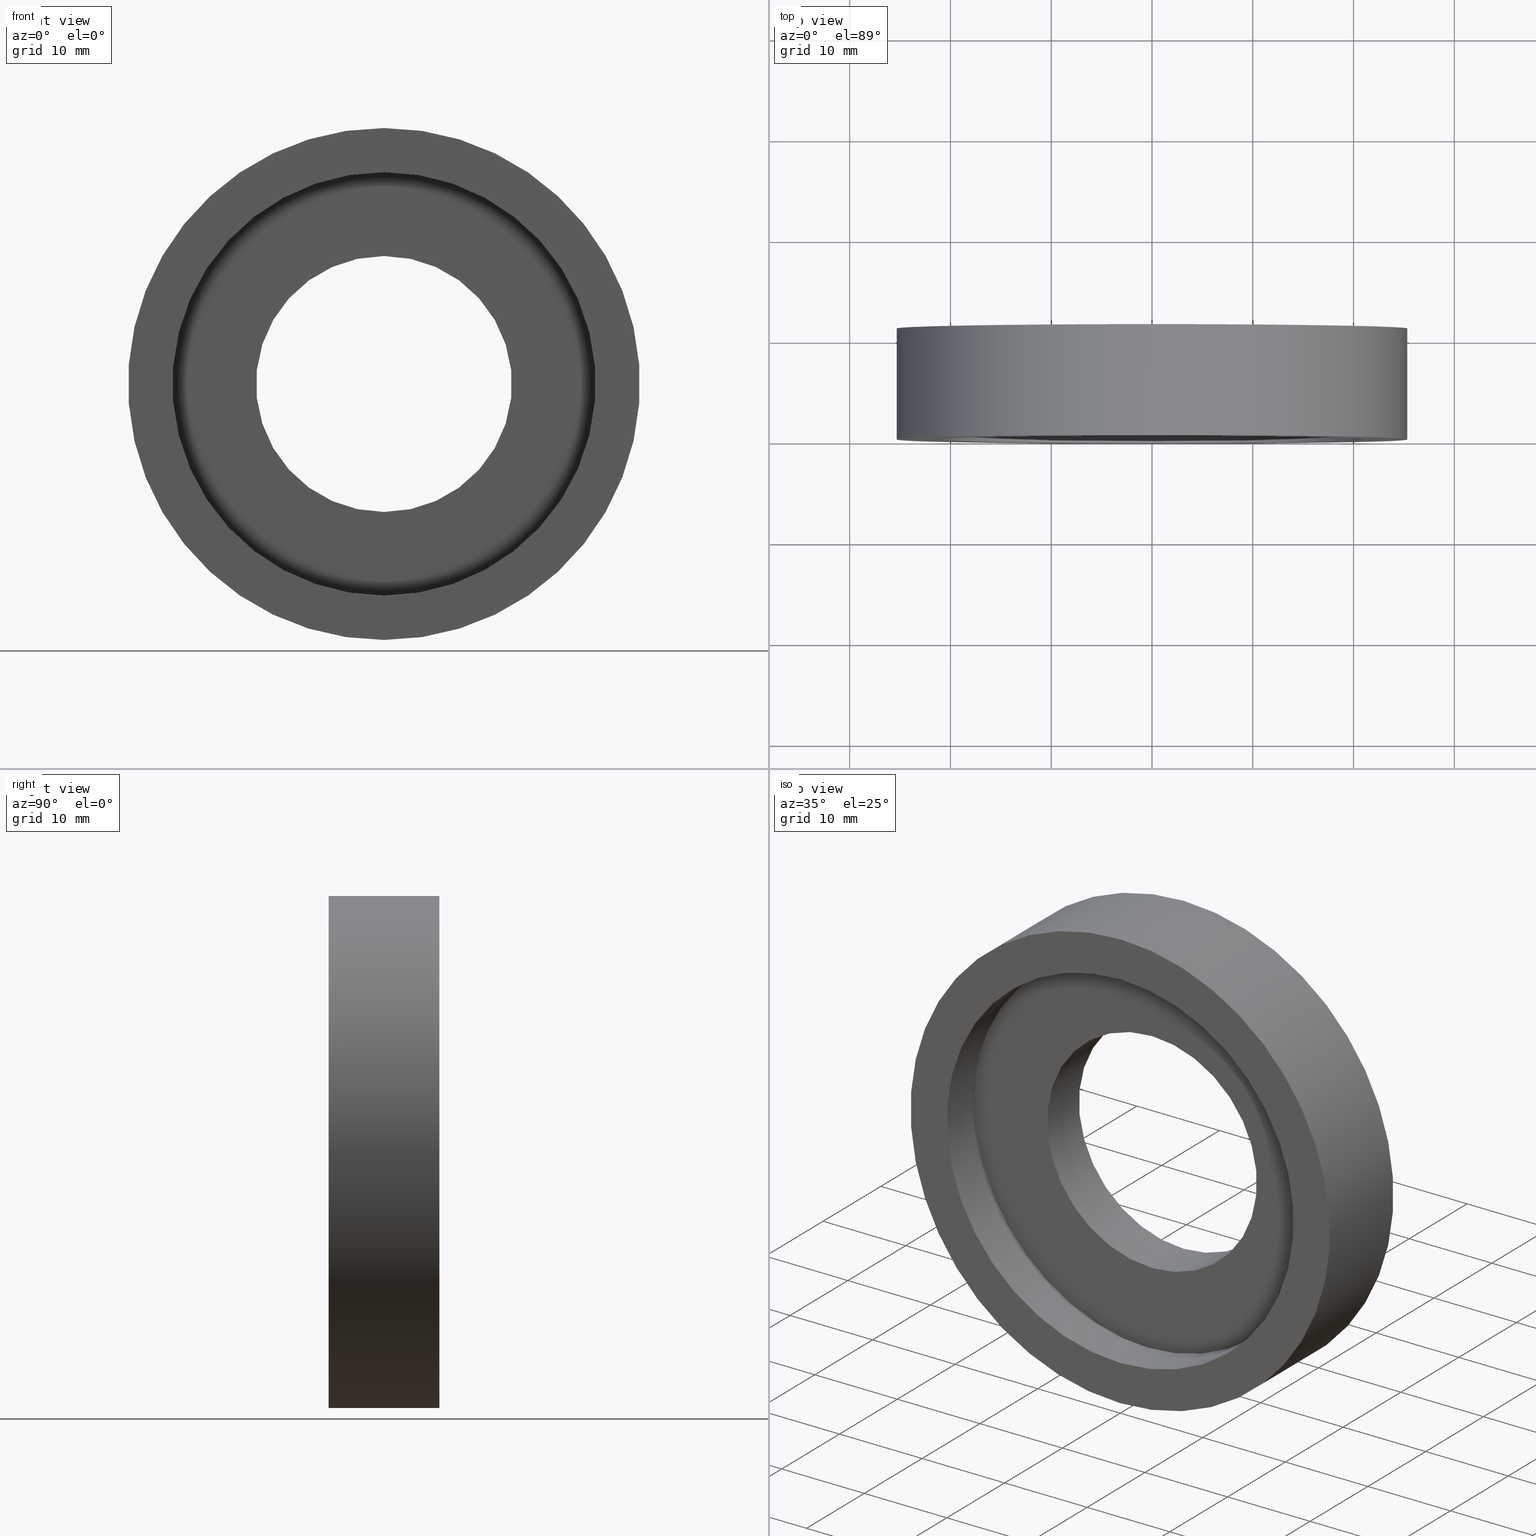
[diagram: canonical four-view strip — front | top / right | iso, engineering-drawing reading convention]
A machine part, canonical four-view strip (front | top / right | iso — engineering-drawing reading convention). The complete STEP part file that produces these views, byte-faithful:
ISO-10303-21;
HEADER;
FILE_DESCRIPTION (( 'STEP AP203' ),
    '1' );
FILE_NAME ('504043.STEP',
    '2021-06-01T06:07:45',
    ( '' ),
    ( '' ),
    'SwSTEP 2.0',
    'SolidWorks 2020',
    '' );
FILE_SCHEMA (( 'CONFIG_CONTROL_DESIGN' ));
ENDSEC;

DATA;
#1 = CARTESIAN_POINT ( 'NONE',  ( 0.000000000000000000, 5.500000000000000888, 0.000000000000000000 ) ) ;
#2 = UNCERTAINTY_MEASURE_WITH_UNIT (LENGTH_MEASURE( 1.000000000000000082E-05 ), #83, 'distance_accuracy_value', 'NONE');
#3 = EDGE_LOOP ( 'NONE', ( #340, #92, #407, #136 ) ) ;
#4 = DIRECTION ( 'NONE',  ( 0.000000000000000000, 0.000000000000000000, -1.000000000000000000 ) ) ;
#5 = CIRCLE ( 'NONE', #19, 21.00000000000000000 ) ;
#6 = LINE ( 'NONE', #234, #233 ) ;
#7 = CARTESIAN_POINT ( 'NONE',  ( 3.110602869834276865E-15, 0.000000000000000000, 25.39999999999999858 ) ) ;
#8 = EDGE_CURVE ( 'NONE', #88, #152, #375, .T. ) ;
#9 = DIRECTION ( 'NONE',  ( -0.000000000000000000, -1.000000000000000000, -0.000000000000000000 ) ) ;
#10 = VECTOR ( 'NONE', #135, 1000.000000000000000 ) ;
#11 = DIRECTION ( 'NONE',  ( -0.000000000000000000, -1.000000000000000000, -0.000000000000000000 ) ) ;
#12 = CARTESIAN_POINT ( 'NONE',  ( 1.555301434917138433E-15, 10.99999999999999822, 12.69999999999999929 ) ) ;
#13 = APPROVAL ( #158, 'δָ��' ) ;
#14 = ORIENTED_EDGE ( 'NONE', *, *, #390, .F. ) ;
#15 = APPLICATION_PROTOCOL_DEFINITION ( 'international standard', 'config_control_design', 1994, #153 ) ;
#16 = EDGE_LOOP ( 'NONE', ( #196, #164, #145, #95 ) ) ;
#17 = CIRCLE ( 'NONE', #253, 25.39999999999999503 ) ;
#18 = CARTESIAN_POINT ( 'NONE',  ( 0.000000000000000000, 10.99999999999999822, -12.69999999999999929 ) ) ;
#19 = AXIS2_PLACEMENT_3D ( 'NONE', #139, #292, #4 ) ;
#20 = APPROVAL_PERSON_ORGANIZATION ( #288, #321, #96 ) ;
#21 = VERTEX_POINT ( 'NONE', #381 ) ;
#22 = ORIENTED_EDGE ( 'NONE', *, *, #275, .T. ) ;
#23 = EDGE_CURVE ( 'NONE', #405, #21, #207, .T. ) ;
#24 = FACE_OUTER_BOUND ( 'NONE', #241, .T. ) ;
#25 = ORIENTED_EDGE ( 'NONE', *, *, #260, .T. ) ;
#26 = CALENDAR_DATE ( 2021, 1, 6 ) ;
#27 = ORIENTED_EDGE ( 'NONE', *, *, #30, .T. ) ;
#28 = COORDINATED_UNIVERSAL_TIME_OFFSET ( 8, 0, .AHEAD. ) ;
#29 = EDGE_LOOP ( 'NONE', ( #183, #163 ) ) ;
#30 = EDGE_CURVE ( 'NONE', #66, #152, #42, .T. ) ;
#31 = DATE_TIME_ROLE ( 'classification_date' ) ;
#32 = CARTESIAN_POINT ( 'NONE',  ( 0.000000000000000000, 10.99999999999999645, 0.000000000000000000 ) ) ;
#33 = COORDINATED_UNIVERSAL_TIME_OFFSET ( 8, 0, .AHEAD. ) ;
#34 = DIRECTION ( 'NONE',  ( 0.000000000000000000, 0.000000000000000000, -1.000000000000000000 ) ) ;
#35 = VECTOR ( 'NONE', #227, 1000.000000000000000 ) ;
#36 = CIRCLE ( 'NONE', #355, 21.00000000000000000 ) ;
#37 = APPLICATION_PROTOCOL_DEFINITION ( 'international standard', 'config_control_design', 1994, #46 ) ;
#38 = EDGE_LOOP ( 'NONE', ( #365, #243 ) ) ;
#39 = ADVANCED_FACE ( 'NONE', ( #344, #98 ), #60, .T. ) ;
#40 = DIRECTION ( 'NONE',  ( -0.000000000000000000, -1.000000000000000000, -0.000000000000000000 ) ) ;
#41 = CARTESIAN_POINT ( 'NONE',  ( 0.000000000000000000, 5.499999999999997335, 0.000000000000000000 ) ) ;
#42 = CIRCLE ( 'NONE', #147, 25.39999999999999503 ) ;
#43 = CARTESIAN_POINT ( 'NONE',  ( 0.000000000000000000, 0.000000000000000000, 0.000000000000000000 ) ) ;
#44 = CARTESIAN_POINT ( 'NONE',  ( 0.000000000000000000, -5.551145924324170024E-17, 0.000000000000000000 ) ) ;
#45 = DIRECTION ( 'NONE',  ( -0.000000000000000000, -1.000000000000000000, -0.000000000000000000 ) ) ;
#46 = APPLICATION_CONTEXT ( 'configuration controlled 3d designs of mechanical parts and assemblies' ) ;
#47 = ORGANIZATION ( 'δָ��', 'δָ��', '' ) ;
#48 = EDGE_CURVE ( 'NONE', #150, #86, #350, .T. ) ;
#49 = DIRECTION ( 'NONE',  ( -0.000000000000000000, -1.000000000000000000, -0.000000000000000000 ) ) ;
#50 = EDGE_LOOP ( 'NONE', ( #291, #208, #93, #305 ) ) ;
#51 = ORIENTED_EDGE ( 'NONE', *, *, #48, .F. ) ;
#52 = DIRECTION ( 'NONE',  ( 0.000000000000000000, 0.000000000000000000, -1.000000000000000000 ) ) ;
#53 = ORIENTED_EDGE ( 'NONE', *, *, #281, .T. ) ;
#54 = AXIS2_PLACEMENT_3D ( 'NONE', #217, #252, #127 ) ;
#55 = AXIS2_PLACEMENT_3D ( 'NONE', #395, #398, #244 ) ;
#56 = CARTESIAN_POINT ( 'NONE',  ( 0.000000000000000000, 4.500000000000000888, -21.60000000000000142 ) ) ;
#57 = ADVANCED_FACE ( 'NONE', ( #191, #380 ), #157, .T. ) ;
#58 = CARTESIAN_POINT ( 'NONE',  ( 0.000000000000000000, 10.99999999999999645, 0.000000000000000000 ) ) ;
#59 = ORIENTED_EDGE ( 'NONE', *, *, #103, .F. ) ;
#60 = PLANE ( 'NONE',  #220 ) ;
#61 = PERSON_AND_ORGANIZATION ( #71, #47 ) ;
#62 = EDGE_CURVE ( 'NONE', #334, #88, #173, .T. ) ;
#63 = AXIS2_PLACEMENT_3D ( 'NONE', #385, #322, #262 ) ;
#64 = CARTESIAN_POINT ( 'NONE',  ( 0.000000000000000000, 4.500000000000000888, -21.00000000000000000 ) ) ;
#65 = CARTESIAN_POINT ( 'NONE',  ( 0.000000000000000000, 4.500000000000000888, 0.000000000000000000 ) ) ;
#66 = VERTEX_POINT ( 'NONE', #161 ) ;
#67 = APPROVAL_ROLE ( '' ) ;
#68 = ORIENTED_EDGE ( 'NONE', *, *, #82, .T. ) ;
#69 =( GEOMETRIC_REPRESENTATION_CONTEXT ( 3 ) GLOBAL_UNCERTAINTY_ASSIGNED_CONTEXT ( ( #2 ) ) GLOBAL_UNIT_ASSIGNED_CONTEXT ( ( #83, #151, #393 ) ) REPRESENTATION_CONTEXT ( 'NONE', 'WORKASPACE' ) );
#70 = EDGE_CURVE ( 'NONE', #21, #405, #195, .T. ) ;
#71 = PERSON ( 'δָ��', 'δָ��', 'δָ��', ('δָ��'), ('δָ��'), ('δָ��') ) ;
#72 = CARTESIAN_POINT ( 'NONE',  ( 0.000000000000000000, 5.976924914303601485E-15, 0.000000000000000000 ) ) ;
#73 = CARTESIAN_POINT ( 'NONE',  ( 0.000000000000000000, -5.551145924324170024E-17, -25.39999999999999503 ) ) ;
#74 = CC_DESIGN_PERSON_AND_ORGANIZATION_ASSIGNMENT ( #341, #308, ( #204 ) ) ;
#75 = FACE_BOUND ( 'NONE', #38, .T. ) ;
#76 = CIRCLE ( 'NONE', #286, 21.00000000000000000 ) ;
#77 = AXIS2_PLACEMENT_3D ( 'NONE', #339, #242, #368 ) ;
#78 = CC_DESIGN_APPROVAL ( #237, ( #255 ) ) ;
#79 = CARTESIAN_POINT ( 'NONE',  ( 0.000000000000000000, 0.000000000000000000, 0.000000000000000000 ) ) ;
#80 = CYLINDRICAL_SURFACE ( 'NONE', #330, 21.00000000000000000 ) ;
#81 = DIRECTION ( 'NONE',  ( 0.000000000000000000, 0.000000000000000000, -1.000000000000000000 ) ) ;
#82 = EDGE_CURVE ( 'NONE', #405, #397, #409, .T. ) ;
#83 =( LENGTH_UNIT ( ) NAMED_UNIT ( * ) SI_UNIT ( .MILLI., .METRE. ) );
#84 = ORIENTED_EDGE ( 'NONE', *, *, #317, .F. ) ;
#85 = CYLINDRICAL_SURFACE ( 'NONE', #246, 12.69999999999999929 ) ;
#86 = VERTEX_POINT ( 'NONE', #64 ) ;
#87 = CARTESIAN_POINT ( 'NONE',  ( 0.000000000000000000, 5.499999999999997335, 0.000000000000000000 ) ) ;
#88 = VERTEX_POINT ( 'NONE', #102 ) ;
#89 = VECTOR ( 'NONE', #49, 1000.000000000000000 ) ;
#90 = FACE_OUTER_BOUND ( 'NONE', #179, .T. ) ;
#91 = CC_DESIGN_APPROVAL ( #321, ( #239 ) ) ;
#92 = ORIENTED_EDGE ( 'NONE', *, *, #119, .T. ) ;
#93 = ORIENTED_EDGE ( 'NONE', *, *, #403, .T. ) ;
#94 = PRODUCT_RELATED_PRODUCT_CATEGORY ( 'detail', '', ( #235 ) ) ;
#95 = ORIENTED_EDGE ( 'NONE', *, *, #30, .F. ) ;
#96 = APPROVAL_ROLE ( '' ) ;
#97 = AXIS2_PLACEMENT_3D ( 'NONE', #261, #40, #166 ) ;
#98 = FACE_OUTER_BOUND ( 'NONE', #129, .T. ) ;
#99 = LOCAL_TIME ( 14, 7, 45.00000000000000000, #343 ) ;
#100 = ORIENTED_EDGE ( 'NONE', *, *, #216, .F. ) ;
#101 = CALENDAR_DATE ( 2021, 1, 6 ) ;
#102 = CARTESIAN_POINT ( 'NONE',  ( 0.000000000000000000, 10.99999999999999645, -25.39999999999999858 ) ) ;
#103 = EDGE_CURVE ( 'NONE', #21, #400, #313, .T. ) ;
#104 = DIRECTION ( 'NONE',  ( -0.000000000000000000, -1.000000000000000000, -0.000000000000000000 ) ) ;
#105 = LOCAL_TIME ( 14, 7, 45.00000000000000000, #28 ) ;
#106 = DIRECTION ( 'NONE',  ( -0.000000000000000000, -1.000000000000000000, -0.000000000000000000 ) ) ;
#107 = CC_DESIGN_PERSON_AND_ORGANIZATION_ASSIGNMENT ( #318, #226, ( #235 ) ) ;
#108 = CYLINDRICAL_SURFACE ( 'NONE', #361, 12.69999999999999929 ) ;
#109 = MANIFOLD_SOLID_BREP ( '��ת1', #383 ) ;
#110 = CYLINDRICAL_SURFACE ( 'NONE', #212, 21.60000000000000142 ) ;
#111 = VECTOR ( 'NONE', #104, 1000.000000000000000 ) ;
#112 = CARTESIAN_POINT ( 'NONE',  ( 1.555301434917138433E-15, 0.000000000000000000, 12.69999999999999929 ) ) ;
#113 = DIRECTION ( 'NONE',  ( -0.000000000000000000, -1.000000000000000000, -0.000000000000000000 ) ) ;
#114 = CC_DESIGN_DATE_AND_TIME_ASSIGNMENT ( #282, #218, ( #204 ) ) ;
#115 = CARTESIAN_POINT ( 'NONE',  ( 0.000000000000000000, 4.500000000000000888, 0.000000000000000000 ) ) ;
#116 = EDGE_LOOP ( 'NONE', ( #22, #215 ) ) ;
#117 = CARTESIAN_POINT ( 'NONE',  ( 0.000000000000000000, 0.000000000000000000, 0.000000000000000000 ) ) ;
#118 = ORIENTED_EDGE ( 'NONE', *, *, #403, .F. ) ;
#119 = EDGE_CURVE ( 'NONE', #334, #66, #170, .T. ) ;
#120 = CARTESIAN_POINT ( 'NONE',  ( 0.000000000000000000, 0.000000000000000000, 0.000000000000000000 ) ) ;
#121 = ORIENTED_EDGE ( 'NONE', *, *, #62, .F. ) ;
#122 = FACE_BOUND ( 'NONE', #177, .T. ) ;
#123 = ORIENTED_EDGE ( 'NONE', *, *, #216, .T. ) ;
#124 = DIRECTION ( 'NONE',  ( 1.000000000000000000, 0.000000000000000000, 0.000000000000000000 ) ) ;
#125 = EDGE_CURVE ( 'NONE', #152, #66, #17, .T. ) ;
#126 = DIRECTION ( 'NONE',  ( 0.000000000000000000, 0.000000000000000000, 1.000000000000000000 ) ) ;
#127 = DIRECTION ( 'NONE',  ( 0.000000000000000000, 0.000000000000000000, -1.000000000000000000 ) ) ;
#128 = SECURITY_CLASSIFICATION_LEVEL ( 'unclassified' ) ;
#129 = EDGE_LOOP ( 'NONE', ( #280, #300 ) ) ;
#130 = AXIS2_PLACEMENT_3D ( 'NONE', #256, #189, #314 ) ;
#131 = CARTESIAN_POINT ( 'NONE',  ( 0.000000000000000000, 0.000000000000000000, 0.000000000000000000 ) ) ;
#132 = EDGE_LOOP ( 'NONE', ( #362, #123, #53, #210 ) ) ;
#133 = PERSON_AND_ORGANIZATION ( #71, #47 ) ;
#134 = CC_DESIGN_PERSON_AND_ORGANIZATION_ASSIGNMENT ( #257, #185, ( #239 ) ) ;
#135 = DIRECTION ( 'NONE',  ( -0.000000000000000000, -1.000000000000000000, -0.000000000000000000 ) ) ;
#136 = ORIENTED_EDGE ( 'NONE', *, *, #8, .F. ) ;
#137 = CARTESIAN_POINT ( 'NONE',  ( 0.000000000000000000, 1.200936128785044448E-14, -21.00000000000000000 ) ) ;
#138 = AXIS2_PLACEMENT_3D ( 'NONE', #131, #126, #124 ) ;
#139 = CARTESIAN_POINT ( 'NONE',  ( 0.000000000000000000, 1.200936128785044448E-14, 0.000000000000000000 ) ) ;
#140 = DIRECTION ( 'NONE',  ( -0.000000000000000000, -1.000000000000000000, -0.000000000000000000 ) ) ;
#141 = CYLINDRICAL_SURFACE ( 'NONE', #384, 25.39999999999999858 ) ;
#142 = EDGE_CURVE ( 'NONE', #274, #259, #76, .T. ) ;
#143 = FACE_OUTER_BOUND ( 'NONE', #372, .T. ) ;
#144 = ORIENTED_EDGE ( 'NONE', *, *, #23, .F. ) ;
#145 = ORIENTED_EDGE ( 'NONE', *, *, #8, .T. ) ;
#146 = ADVANCED_FACE ( 'NONE', ( #325 ), #110, .F. ) ;
#147 = AXIS2_PLACEMENT_3D ( 'NONE', #342, #374, #346 ) ;
#148 = CIRCLE ( 'NONE', #298, 12.69999999999999929 ) ;
#149 = DIRECTION ( 'NONE',  ( 0.000000000000000000, 0.000000000000000000, -1.000000000000000000 ) ) ;
#150 = VERTEX_POINT ( 'NONE', #297 ) ;
#151 =( NAMED_UNIT ( * ) PLANE_ANGLE_UNIT ( ) SI_UNIT ( $, .RADIAN. ) );
#152 = VERTEX_POINT ( 'NONE', #73 ) ;
#153 = APPLICATION_CONTEXT ( 'configuration controlled 3d designs of mechanical parts and assemblies' ) ;
#154 = DIRECTION ( 'NONE',  ( 0.000000000000000000, 0.000000000000000000, -1.000000000000000000 ) ) ;
#155 = VERTEX_POINT ( 'NONE', #352 ) ;
#156 = CALENDAR_DATE ( 2021, 1, 6 ) ;
#157 = PLANE ( 'NONE',  #130 ) ;
#158 = APPROVAL_STATUS ( 'not_yet_approved' ) ;
#159 = EDGE_LOOP ( 'NONE', ( #84, #121 ) ) ;
#160 = COORDINATED_UNIVERSAL_TIME_OFFSET ( 8, 0, .AHEAD. ) ;
#161 = CARTESIAN_POINT ( 'NONE',  ( 3.110602869834276471E-15, -5.551145924324170024E-17, 25.39999999999999503 ) ) ;
#162 = CIRCLE ( 'NONE', #389, 21.60000000000000142 ) ;
#163 = ORIENTED_EDGE ( 'NONE', *, *, #48, .T. ) ;
#164 = ORIENTED_EDGE ( 'NONE', *, *, #62, .T. ) ;
#165 = EDGE_CURVE ( 'NONE', #150, #259, #353, .T. ) ;
#166 = DIRECTION ( 'NONE',  ( 0.000000000000000000, 0.000000000000000000, -1.000000000000000000 ) ) ;
#167 = DIRECTION ( 'NONE',  ( 0.000000000000000000, -0.000000000000000000, 1.000000000000000000 ) ) ;
#168 = PRODUCT_DEFINITION_SHAPE ( 'NONE', 'NONE',  #204 ) ;
#169 = DIRECTION ( 'NONE',  ( 0.000000000000000000, 1.000000000000000000, 0.000000000000000000 ) ) ;
#170 = LINE ( 'NONE', #7, #200 ) ;
#171 = ADVANCED_FACE ( 'NONE', ( #198 ), #80, .F. ) ;
#172 = DIRECTION ( 'NONE',  ( 0.000000000000000000, 0.000000000000000000, -1.000000000000000000 ) ) ;
#173 = CIRCLE ( 'NONE', #272, 25.39999999999999858 ) ;
#174 = LOCAL_TIME ( 14, 7, 45.00000000000000000, #33 ) ;
#175 = CC_DESIGN_SECURITY_CLASSIFICATION ( #255, ( #239 ) ) ;
#176 = EDGE_LOOP ( 'NONE', ( #248, #181, #394, #258 ) ) ;
#177 = EDGE_LOOP ( 'NONE', ( #14, #270 ) ) ;
#178 = CARTESIAN_POINT ( 'NONE',  ( 2.645237086158282987E-15, 5.500000000000000888, 21.60000000000000142 ) ) ;
#179 = EDGE_LOOP ( 'NONE', ( #51, #370, #25, #118 ) ) ;
#180 = CIRCLE ( 'NONE', #337, 21.60000000000000142 ) ;
#181 = ORIENTED_EDGE ( 'NONE', *, *, #70, .F. ) ;
#182 = FACE_OUTER_BOUND ( 'NONE', #132, .T. ) ;
#183 = ORIENTED_EDGE ( 'NONE', *, *, #333, .T. ) ;
#184 = ADVANCED_FACE ( 'NONE', ( #143 ), #108, .F. ) ;
#185 = PERSON_AND_ORGANIZATION_ROLE ( 'creator' ) ;
#186 = DIRECTION ( 'NONE',  ( -0.000000000000000000, -1.000000000000000000, -0.000000000000000000 ) ) ;
#187 = CIRCLE ( 'NONE', #287, 12.69999999999999929 ) ;
#188 = CALENDAR_DATE ( 2021, 1, 6 ) ;
#189 = DIRECTION ( 'NONE',  ( 0.000000000000000000, 1.000000000000000000, 0.000000000000000000 ) ) ;
#190 = APPROVAL_DATE_TIME ( #401, #321 ) ;
#191 = FACE_BOUND ( 'NONE', #116, .T. ) ;
#192 = EDGE_CURVE ( 'NONE', #367, #283, #187, .T. ) ;
#193 = APPROVAL_DATE_TIME ( #345, #237 ) ;
#194 = ORIENTED_EDGE ( 'NONE', *, *, #23, .T. ) ;
#195 = CIRCLE ( 'NONE', #376, 21.60000000000000142 ) ;
#196 = ORIENTED_EDGE ( 'NONE', *, *, #119, .F. ) ;
#197 = ADVANCED_FACE ( 'NONE', ( #326 ), #141, .T. ) ;
#198 = FACE_OUTER_BOUND ( 'NONE', #50, .T. ) ;
#199 = CARTESIAN_POINT ( 'NONE',  ( 2.571758278209441661E-15, 1.200936128785044448E-14, 21.00000000000000000 ) ) ;
#200 = VECTOR ( 'NONE', #140, 1000.000000000000000 ) ;
#201 = DIRECTION ( 'NONE',  ( -0.000000000000000000, -1.000000000000000000, -0.000000000000000000 ) ) ;
#202 = AXIS2_PLACEMENT_3D ( 'NONE', #58, #113, #240 ) ;
#203 = DIRECTION ( 'NONE',  ( 0.000000000000000000, 0.000000000000000000, -1.000000000000000000 ) ) ;
#204 = PRODUCT_DEFINITION ( 'δ֪', '', #239, #268 ) ;
#205 = CARTESIAN_POINT ( 'NONE',  ( 0.000000000000000000, 0.000000000000000000, 0.000000000000000000 ) ) ;
#206 = CARTESIAN_POINT ( 'NONE',  ( 0.000000000000000000, 4.500000000000000888, 0.000000000000000000 ) ) ;
#207 = CIRCLE ( 'NONE', #54, 21.60000000000000142 ) ;
#208 = ORIENTED_EDGE ( 'NONE', *, *, #333, .F. ) ;
#209 = DIRECTION ( 'NONE',  ( 0.000000000000000000, 0.000000000000000000, -1.000000000000000000 ) ) ;
#210 = ORIENTED_EDGE ( 'NONE', *, *, #229, .F. ) ;
#211 = DIRECTION ( 'NONE',  ( -0.000000000000000000, -1.000000000000000000, -0.000000000000000000 ) ) ;
#212 = AXIS2_PLACEMENT_3D ( 'NONE', #205, #45, #327 ) ;
#213 = CIRCLE ( 'NONE', #265, 12.69999999999999929 ) ;
#214 = DIRECTION ( 'NONE',  ( -0.000000000000000000, -1.000000000000000000, -0.000000000000000000 ) ) ;
#215 = ORIENTED_EDGE ( 'NONE', *, *, #192, .T. ) ;
#216 = EDGE_CURVE ( 'NONE', #367, #155, #391, .T. ) ;
#217 = CARTESIAN_POINT ( 'NONE',  ( 0.000000000000000000, 5.500000000000000888, 0.000000000000000000 ) ) ;
#218 = DATE_TIME_ROLE ( 'creation_date' ) ;
#219 = DIRECTION ( 'NONE',  ( 0.000000000000000000, 0.000000000000000000, -1.000000000000000000 ) ) ;
#220 = AXIS2_PLACEMENT_3D ( 'NONE', #223, #289, #315 ) ;
#221 = PERSON_AND_ORGANIZATION ( #71, #47 ) ;
#222 = ADVANCED_FACE ( 'NONE', ( #75, #354 ), #357, .F. ) ;
#223 = CARTESIAN_POINT ( 'NONE',  ( 0.000000000000000000, 4.500000000000000888, 0.000000000000000000 ) ) ;
#224 = CALENDAR_DATE ( 2021, 1, 6 ) ;
#225 = DIRECTION ( 'NONE',  ( -0.000000000000000000, -1.000000000000000000, -0.000000000000000000 ) ) ;
#226 = PERSON_AND_ORGANIZATION_ROLE ( 'design_owner' ) ;
#227 = DIRECTION ( 'NONE',  ( -0.000000000000000000, -1.000000000000000000, -0.000000000000000000 ) ) ;
#228 = DIRECTION ( 'NONE',  ( -0.000000000000000000, -1.000000000000000000, -0.000000000000000000 ) ) ;
#229 = EDGE_CURVE ( 'NONE', #283, #302, #6, .T. ) ;
#230 = CARTESIAN_POINT ( 'NONE',  ( 0.000000000000000000, 1.200936128785044448E-14, 0.000000000000000000 ) ) ;
#231 = DIRECTION ( 'NONE',  ( -0.000000000000000000, -1.000000000000000000, -0.000000000000000000 ) ) ;
#232 = CARTESIAN_POINT ( 'NONE',  ( 2.571758278209441661E-15, 0.000000000000000000, 21.00000000000000000 ) ) ;
#233 = VECTOR ( 'NONE', #228, 1000.000000000000000 ) ;
#234 = CARTESIAN_POINT ( 'NONE',  ( 0.000000000000000000, 0.000000000000000000, -12.69999999999999929 ) ) ;
#235 = PRODUCT ( '504043', '504043', '', ( #254 ) ) ;
#236 = DIRECTION ( 'NONE',  ( -0.000000000000000000, -1.000000000000000000, -0.000000000000000000 ) ) ;
#237 = APPROVAL ( #378, 'δָ��' ) ;
#238 = DIRECTION ( 'NONE',  ( 0.000000000000000000, 0.000000000000000000, -1.000000000000000000 ) ) ;
#239 = PRODUCT_DEFINITION_FORMATION_WITH_SPECIFIED_SOURCE ( '�κ�', '', #235, .NOT_KNOWN. ) ;
#240 = DIRECTION ( 'NONE',  ( 0.000000000000000000, 0.000000000000000000, -1.000000000000000000 ) ) ;
#241 = EDGE_LOOP ( 'NONE', ( #144, #68, #349, #59 ) ) ;
#242 = DIRECTION ( 'NONE',  ( -0.000000000000000000, -1.000000000000000000, -0.000000000000000000 ) ) ;
#243 = ORIENTED_EDGE ( 'NONE', *, *, #260, .F. ) ;
#244 = DIRECTION ( 'NONE',  ( 0.000000000000000000, 0.000000000000000000, -1.000000000000000000 ) ) ;
#245 = ADVANCED_FACE ( 'NONE', ( #295 ), #320, .T. ) ;
#246 = AXIS2_PLACEMENT_3D ( 'NONE', #120, #306, #154 ) ;
#247 = APPROVAL_STATUS ( 'not_yet_approved' ) ;
#248 = ORIENTED_EDGE ( 'NONE', *, *, #82, .F. ) ;
#249 = APPROVAL_ROLE ( '' ) ;
#250 = DIRECTION ( 'NONE',  ( 0.000000000000000000, 0.000000000000000000, -1.000000000000000000 ) ) ;
#251 = DATE_AND_TIME ( #224, #174 ) ;
#252 = DIRECTION ( 'NONE',  ( -0.000000000000000000, -1.000000000000000000, -0.000000000000000000 ) ) ;
#253 = AXIS2_PLACEMENT_3D ( 'NONE', #44, #106, #386 ) ;
#254 = MECHANICAL_CONTEXT ( 'NONE', #153, 'mechanical' ) ;
#255 = SECURITY_CLASSIFICATION ( '', '', #128 ) ;
#256 = CARTESIAN_POINT ( 'NONE',  ( -1.502516396515344672E-15, 10.99999999999999645, 0.000000000000000000 ) ) ;
#257 = PERSON_AND_ORGANIZATION ( #71, #47 ) ;
#258 = ORIENTED_EDGE ( 'NONE', *, *, #363, .T. ) ;
#259 = VERTEX_POINT ( 'NONE', #199 ) ;
#260 = EDGE_CURVE ( 'NONE', #259, #274, #5, .T. ) ;
#261 = CARTESIAN_POINT ( 'NONE',  ( 0.000000000000000000, 0.000000000000000000, 0.000000000000000000 ) ) ;
#262 = DIRECTION ( 'NONE',  ( 0.000000000000000000, 0.000000000000000000, -1.000000000000000000 ) ) ;
#263 = DIRECTION ( 'NONE',  ( 0.000000000000000000, 0.000000000000000000, -1.000000000000000000 ) ) ;
#264 = DIRECTION ( 'NONE',  ( -0.000000000000000000, -1.000000000000000000, -0.000000000000000000 ) ) ;
#265 = AXIS2_PLACEMENT_3D ( 'NONE', #87, #211, #209 ) ;
#266 = APPROVAL_PERSON_ORGANIZATION ( #221, #237, #67 ) ;
#267 = DIRECTION ( 'NONE',  ( 0.000000000000000000, 0.000000000000000000, -1.000000000000000000 ) ) ;
#268 = DESIGN_CONTEXT ( 'detailed design', #46, 'design' ) ;
#269 = CYLINDRICAL_SURFACE ( 'NONE', #377, 21.60000000000000142 ) ;
#270 = ORIENTED_EDGE ( 'NONE', *, *, #281, .F. ) ;
#271 = CARTESIAN_POINT ( 'NONE',  ( 0.000000000000000000, 5.499999999999997335, -12.69999999999999929 ) ) ;
#272 = AXIS2_PLACEMENT_3D ( 'NONE', #32, #225, #250 ) ;
#273 = DIRECTION ( 'NONE',  ( -0.000000000000000000, -1.000000000000000000, -0.000000000000000000 ) ) ;
#274 = VERTEX_POINT ( 'NONE', #137 ) ;
#275 = EDGE_CURVE ( 'NONE', #283, #367, #323, .T. ) ;
#276 = FACE_OUTER_BOUND ( 'NONE', #304, .T. ) ;
#277 = ORIENTED_EDGE ( 'NONE', *, *, #390, .T. ) ;
#278 = DATE_AND_TIME ( #26, #105 ) ;
#279 = APPROVAL_DATE_TIME ( #251, #13 ) ;
#280 = ORIENTED_EDGE ( 'NONE', *, *, #363, .F. ) ;
#281 = EDGE_CURVE ( 'NONE', #155, #302, #148, .T. ) ;
#282 = DATE_AND_TIME ( #101, #404 ) ;
#283 = VERTEX_POINT ( 'NONE', #18 ) ;
#284 = PERSON_AND_ORGANIZATION_ROLE ( 'classification_officer' ) ;
#285 = DIRECTION ( 'NONE',  ( -0.000000000000000000, -1.000000000000000000, -0.000000000000000000 ) ) ;
#286 = AXIS2_PLACEMENT_3D ( 'NONE', #230, #293, #172 ) ;
#287 = AXIS2_PLACEMENT_3D ( 'NONE', #387, #231, #203 ) ;
#288 = PERSON_AND_ORGANIZATION ( #71, #47 ) ;
#289 = DIRECTION ( 'NONE',  ( 0.000000000000000000, 1.000000000000000000, 0.000000000000000000 ) ) ;
#290 = CC_DESIGN_PERSON_AND_ORGANIZATION_ASSIGNMENT ( #312, #284, ( #255 ) ) ;
#291 = ORIENTED_EDGE ( 'NONE', *, *, #165, .F. ) ;
#292 = DIRECTION ( 'NONE',  ( -0.000000000000000000, -1.000000000000000000, -0.000000000000000000 ) ) ;
#293 = DIRECTION ( 'NONE',  ( -0.000000000000000000, -1.000000000000000000, -0.000000000000000000 ) ) ;
#294 = ADVANCED_FACE ( 'NONE', ( #276, #122 ), #303, .T. ) ;
#295 = FACE_OUTER_BOUND ( 'NONE', #3, .T. ) ;
#296 = CARTESIAN_POINT ( 'NONE',  ( 0.000000000000000000, 0.000000000000000000, 0.000000000000000000 ) ) ;
#297 = CARTESIAN_POINT ( 'NONE',  ( 2.571758278209441661E-15, 4.500000000000000888, 21.00000000000000000 ) ) ;
#298 = AXIS2_PLACEMENT_3D ( 'NONE', #41, #273, #238 ) ;
#299 = ADVANCED_FACE ( 'NONE', ( #90 ), #301, .F. ) ;
#300 = ORIENTED_EDGE ( 'NONE', *, *, #358, .F. ) ;
#301 = CYLINDRICAL_SURFACE ( 'NONE', #77, 21.00000000000000000 ) ;
#302 = VERTEX_POINT ( 'NONE', #271 ) ;
#303 = PLANE ( 'NONE',  #55 ) ;
#304 = EDGE_LOOP ( 'NONE', ( #399, #194 ) ) ;
#305 = ORIENTED_EDGE ( 'NONE', *, *, #142, .T. ) ;
#306 = DIRECTION ( 'NONE',  ( -0.000000000000000000, -1.000000000000000000, -0.000000000000000000 ) ) ;
#307 = ORIENTED_EDGE ( 'NONE', *, *, #125, .T. ) ;
#308 = PERSON_AND_ORGANIZATION_ROLE ( 'creator' ) ;
#309 = ADVANCED_FACE ( 'NONE', ( #24 ), #269, .F. ) ;
#310 = DIRECTION ( 'NONE',  ( -0.000000000000000000, -1.000000000000000000, -0.000000000000000000 ) ) ;
#311 = CC_DESIGN_APPROVAL ( #13, ( #204 ) ) ;
#312 = PERSON_AND_ORGANIZATION ( #71, #47 ) ;
#313 = LINE ( 'NONE', #347, #35 ) ;
#314 = DIRECTION ( 'NONE',  ( 0.000000000000000000, -0.000000000000000000, 1.000000000000000000 ) ) ;
#315 = DIRECTION ( 'NONE',  ( 0.000000000000000000, -0.000000000000000000, 1.000000000000000000 ) ) ;
#316 = VECTOR ( 'NONE', #186, 1000.000000000000000 ) ;
#317 = EDGE_CURVE ( 'NONE', #88, #334, #369, .T. ) ;
#318 = PERSON_AND_ORGANIZATION ( #71, #47 ) ;
#319 = ORIENTED_EDGE ( 'NONE', *, *, #229, .T. ) ;
#320 = CYLINDRICAL_SURFACE ( 'NONE', #97, 25.39999999999999858 ) ;
#321 = APPROVAL ( #247, 'δָ��' ) ;
#322 = DIRECTION ( 'NONE',  ( -0.000000000000000000, -1.000000000000000000, -0.000000000000000000 ) ) ;
#323 = CIRCLE ( 'NONE', #63, 12.69999999999999929 ) ;
#324 = LOCAL_TIME ( 14, 7, 45.00000000000000000, #408 ) ;
#325 = FACE_OUTER_BOUND ( 'NONE', #176, .T. ) ;
#326 = FACE_OUTER_BOUND ( 'NONE', #16, .T. ) ;
#327 = DIRECTION ( 'NONE',  ( 0.000000000000000000, 0.000000000000000000, -1.000000000000000000 ) ) ;
#328 = ADVANCED_FACE ( 'NONE', ( #182 ), #85, .F. ) ;
#329 = CARTESIAN_POINT ( 'NONE',  ( 0.000000000000000000, 0.000000000000000000, -21.00000000000000000 ) ) ;
#330 = AXIS2_PLACEMENT_3D ( 'NONE', #79, #201, #356 ) ;
#331 = EDGE_LOOP ( 'NONE', ( #307, #27 ) ) ;
#332 = LINE ( 'NONE', #329, #89 ) ;
#333 = EDGE_CURVE ( 'NONE', #86, #150, #36, .T. ) ;
#334 = VERTEX_POINT ( 'NONE', #364 ) ;
#335 = CARTESIAN_POINT ( 'NONE',  ( 2.645237086158282987E-15, 4.500000000000000888, 21.60000000000000142 ) ) ;
#336 = AXIS2_PLACEMENT_3D ( 'NONE', #65, #310, #34 ) ;
#337 = AXIS2_PLACEMENT_3D ( 'NONE', #115, #359, #81 ) ;
#338 = ORIENTED_EDGE ( 'NONE', *, *, #275, .F. ) ;
#339 = CARTESIAN_POINT ( 'NONE',  ( 0.000000000000000000, 0.000000000000000000, 0.000000000000000000 ) ) ;
#340 = ORIENTED_EDGE ( 'NONE', *, *, #317, .T. ) ;
#341 = PERSON_AND_ORGANIZATION ( #71, #47 ) ;
#342 = CARTESIAN_POINT ( 'NONE',  ( 0.000000000000000000, -5.551145924324170024E-17, 0.000000000000000000 ) ) ;
#343 = COORDINATED_UNIVERSAL_TIME_OFFSET ( 8, 0, .AHEAD. ) ;
#344 = FACE_BOUND ( 'NONE', #29, .T. ) ;
#345 = DATE_AND_TIME ( #156, #324 ) ;
#346 = DIRECTION ( 'NONE',  ( 0.000000000000000000, 0.000000000000000000, -1.000000000000000000 ) ) ;
#347 = CARTESIAN_POINT ( 'NONE',  ( 0.000000000000000000, 0.000000000000000000, -21.60000000000000142 ) ) ;
#348 = PERSON_AND_ORGANIZATION_ROLE ( 'design_supplier' ) ;
#349 = ORIENTED_EDGE ( 'NONE', *, *, #358, .T. ) ;
#350 = CIRCLE ( 'NONE', #336, 21.00000000000000000 ) ;
#351 = APPROVAL_PERSON_ORGANIZATION ( #133, #13, #249 ) ;
#352 = CARTESIAN_POINT ( 'NONE',  ( 1.555301434917138433E-15, 5.499999999999997335, 12.69999999999999929 ) ) ;
#353 = LINE ( 'NONE', #232, #388 ) ;
#354 = FACE_OUTER_BOUND ( 'NONE', #331, .T. ) ;
#355 = AXIS2_PLACEMENT_3D ( 'NONE', #392, #236, #366 ) ;
#356 = DIRECTION ( 'NONE',  ( 0.000000000000000000, 0.000000000000000000, -1.000000000000000000 ) ) ;
#357 = PLANE ( 'NONE',  #396 ) ;
#358 = EDGE_CURVE ( 'NONE', #397, #400, #180, .T. ) ;
#359 = DIRECTION ( 'NONE',  ( -0.000000000000000000, -1.000000000000000000, -0.000000000000000000 ) ) ;
#360 = DIRECTION ( 'NONE',  ( -0.000000000000000000, -1.000000000000000000, -0.000000000000000000 ) ) ;
#361 = AXIS2_PLACEMENT_3D ( 'NONE', #296, #9, #263 ) ;
#362 = ORIENTED_EDGE ( 'NONE', *, *, #192, .F. ) ;
#363 = EDGE_CURVE ( 'NONE', #400, #397, #162, .T. ) ;
#364 = CARTESIAN_POINT ( 'NONE',  ( 3.110602869834276865E-15, 10.99999999999999645, 25.39999999999999858 ) ) ;
#365 = ORIENTED_EDGE ( 'NONE', *, *, #142, .F. ) ;
#366 = DIRECTION ( 'NONE',  ( 0.000000000000000000, 0.000000000000000000, -1.000000000000000000 ) ) ;
#367 = VERTEX_POINT ( 'NONE', #12 ) ;
#368 = DIRECTION ( 'NONE',  ( 0.000000000000000000, 0.000000000000000000, -1.000000000000000000 ) ) ;
#369 = CIRCLE ( 'NONE', #202, 25.39999999999999858 ) ;
#370 = ORIENTED_EDGE ( 'NONE', *, *, #165, .T. ) ;
#371 = SHAPE_DEFINITION_REPRESENTATION ( #168, #402 ) ;
#372 = EDGE_LOOP ( 'NONE', ( #100, #338, #319, #277 ) ) ;
#373 = CC_DESIGN_PERSON_AND_ORGANIZATION_ASSIGNMENT ( #61, #348, ( #239 ) ) ;
#374 = DIRECTION ( 'NONE',  ( -0.000000000000000000, -1.000000000000000000, -0.000000000000000000 ) ) ;
#375 = LINE ( 'NONE', #406, #316 ) ;
#376 = AXIS2_PLACEMENT_3D ( 'NONE', #1, #285, #219 ) ;
#377 = AXIS2_PLACEMENT_3D ( 'NONE', #117, #214, #149 ) ;
#378 = APPROVAL_STATUS ( 'not_yet_approved' ) ;
#379 = CARTESIAN_POINT ( 'NONE',  ( 2.645237086158282987E-15, 0.000000000000000000, 21.60000000000000142 ) ) ;
#380 = FACE_OUTER_BOUND ( 'NONE', #159, .T. ) ;
#381 = CARTESIAN_POINT ( 'NONE',  ( 0.000000000000000000, 5.500000000000000888, -21.60000000000000142 ) ) ;
#382 = CC_DESIGN_DATE_AND_TIME_ASSIGNMENT ( #278, #31, ( #255 ) ) ;
#383 = CLOSED_SHELL ( 'NONE', ( #245, #328, #309, #299, #171, #39, #146, #294, #184, #57, #197, #222 ) ) ;
#384 = AXIS2_PLACEMENT_3D ( 'NONE', #43, #264, #267 ) ;
#385 = CARTESIAN_POINT ( 'NONE',  ( 0.000000000000000000, 10.99999999999999822, 0.000000000000000000 ) ) ;
#386 = DIRECTION ( 'NONE',  ( 0.000000000000000000, 0.000000000000000000, -1.000000000000000000 ) ) ;
#387 = CARTESIAN_POINT ( 'NONE',  ( 0.000000000000000000, 10.99999999999999822, 0.000000000000000000 ) ) ;
#388 = VECTOR ( 'NONE', #11, 1000.000000000000000 ) ;
#389 = AXIS2_PLACEMENT_3D ( 'NONE', #206, #360, #52 ) ;
#390 = EDGE_CURVE ( 'NONE', #302, #155, #213, .T. ) ;
#391 = LINE ( 'NONE', #112, #111 ) ;
#392 = CARTESIAN_POINT ( 'NONE',  ( 0.000000000000000000, 4.500000000000000888, 0.000000000000000000 ) ) ;
#393 =( NAMED_UNIT ( * ) SI_UNIT ( $, .STERADIAN. ) SOLID_ANGLE_UNIT ( ) );
#394 = ORIENTED_EDGE ( 'NONE', *, *, #103, .T. ) ;
#395 = CARTESIAN_POINT ( 'NONE',  ( 3.180326372624075447E-14, 5.499999999999999112, 0.000000000000000000 ) ) ;
#396 = AXIS2_PLACEMENT_3D ( 'NONE', #72, #169, #167 ) ;
#397 = VERTEX_POINT ( 'NONE', #335 ) ;
#398 = DIRECTION ( 'NONE',  ( 0.000000000000000000, -1.000000000000000000, -0.000000000000000000 ) ) ;
#399 = ORIENTED_EDGE ( 'NONE', *, *, #70, .T. ) ;
#400 = VERTEX_POINT ( 'NONE', #56 ) ;
#401 = DATE_AND_TIME ( #188, #99 ) ;
#402 = ADVANCED_BREP_SHAPE_REPRESENTATION ( '504043', ( #109, #138 ), #69 ) ;
#403 = EDGE_CURVE ( 'NONE', #86, #274, #332, .T. ) ;
#404 = LOCAL_TIME ( 14, 7, 45.00000000000000000, #160 ) ;
#405 = VERTEX_POINT ( 'NONE', #178 ) ;
#406 = CARTESIAN_POINT ( 'NONE',  ( 0.000000000000000000, 0.000000000000000000, -25.39999999999999858 ) ) ;
#407 = ORIENTED_EDGE ( 'NONE', *, *, #125, .F. ) ;
#408 = COORDINATED_UNIVERSAL_TIME_OFFSET ( 8, 0, .AHEAD. ) ;
#409 = LINE ( 'NONE', #379, #10 ) ;
ENDSEC;
END-ISO-10303-21;
